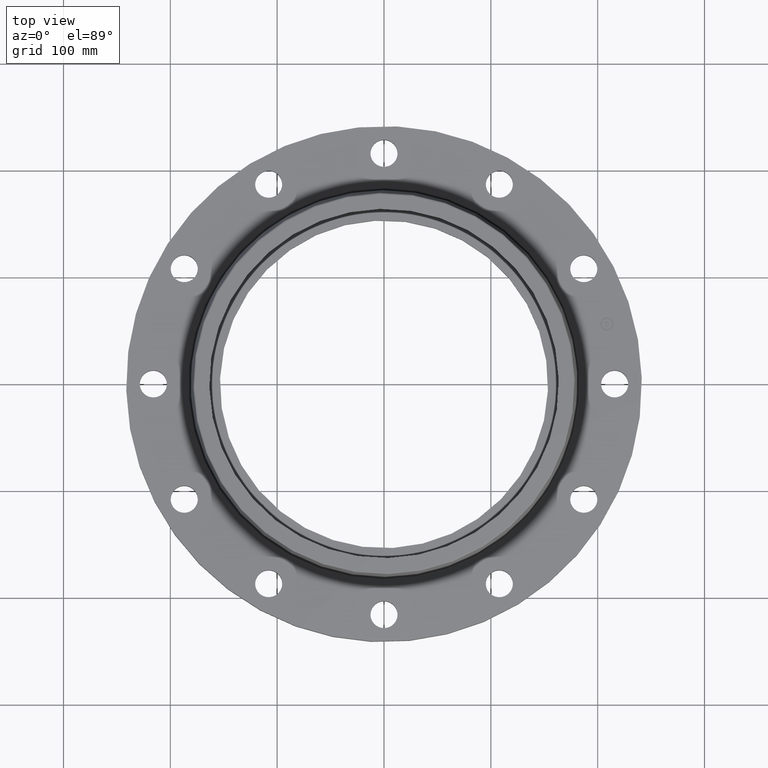
[diagram: clean part render]
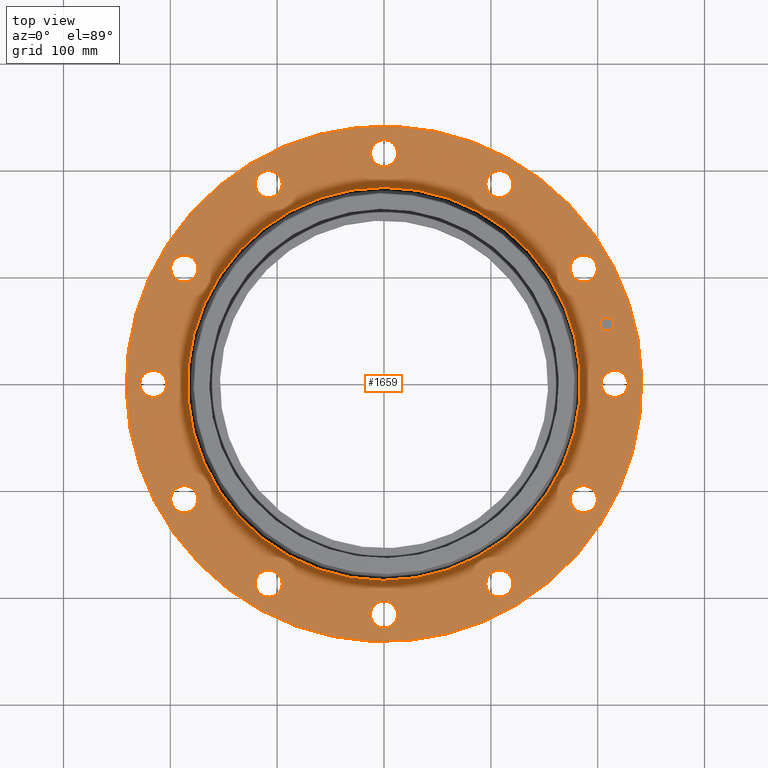
[diagram: same view with one face highlighted and labeled with its STEP entity id]
A machine part, top view. The second image highlights one B-rep face of the part: STEP entity #1659.
In plain terms, the highlighted planar face has unit normal (0, 0, -1).
Its self-contained STEP definition (entity closure, byte-faithful):
#685=AXIS2_PLACEMENT_3D('Circle Axis2P3D',#683,#684,$) ;
#704=AXIS2_PLACEMENT_3D('Circle Axis2P3D',#702,#703,$) ;
#735=AXIS2_PLACEMENT_3D('Circle Axis2P3D',#733,#734,$) ;
#747=AXIS2_PLACEMENT_3D('Circle Axis2P3D',#745,#746,$) ;
#779=AXIS2_PLACEMENT_3D('Circle Axis2P3D',#777,#778,$) ;
#791=AXIS2_PLACEMENT_3D('Circle Axis2P3D',#789,#790,$) ;
#823=AXIS2_PLACEMENT_3D('Circle Axis2P3D',#821,#822,$) ;
#835=AXIS2_PLACEMENT_3D('Circle Axis2P3D',#833,#834,$) ;
#867=AXIS2_PLACEMENT_3D('Circle Axis2P3D',#865,#866,$) ;
#879=AXIS2_PLACEMENT_3D('Circle Axis2P3D',#877,#878,$) ;
#911=AXIS2_PLACEMENT_3D('Circle Axis2P3D',#909,#910,$) ;
#923=AXIS2_PLACEMENT_3D('Circle Axis2P3D',#921,#922,$) ;
#955=AXIS2_PLACEMENT_3D('Circle Axis2P3D',#953,#954,$) ;
#967=AXIS2_PLACEMENT_3D('Circle Axis2P3D',#965,#966,$) ;
#999=AXIS2_PLACEMENT_3D('Circle Axis2P3D',#997,#998,$) ;
#1011=AXIS2_PLACEMENT_3D('Circle Axis2P3D',#1009,#1010,$) ;
#1043=AXIS2_PLACEMENT_3D('Circle Axis2P3D',#1041,#1042,$) ;
#1055=AXIS2_PLACEMENT_3D('Circle Axis2P3D',#1053,#1054,$) ;
#1087=AXIS2_PLACEMENT_3D('Circle Axis2P3D',#1085,#1086,$) ;
#1099=AXIS2_PLACEMENT_3D('Circle Axis2P3D',#1097,#1098,$) ;
#1131=AXIS2_PLACEMENT_3D('Circle Axis2P3D',#1129,#1130,$) ;
#1143=AXIS2_PLACEMENT_3D('Circle Axis2P3D',#1141,#1142,$) ;
#1175=AXIS2_PLACEMENT_3D('Circle Axis2P3D',#1173,#1174,$) ;
#1187=AXIS2_PLACEMENT_3D('Circle Axis2P3D',#1185,#1186,$) ;
#1219=AXIS2_PLACEMENT_3D('Circle Axis2P3D',#1217,#1218,$) ;
#1231=AXIS2_PLACEMENT_3D('Circle Axis2P3D',#1229,#1230,$) ;
#1249=AXIS2_PLACEMENT_3D('Circle Axis2P3D',#1247,#1248,$) ;
#1284=AXIS2_PLACEMENT_3D('Circle Axis2P3D',#1282,#1283,$) ;
#1583=AXIS2_PLACEMENT_3D('Plane Axis2P3D',#1580,#1581,#1582) ;
#1643=AXIS2_PLACEMENT_3D('Circle Axis2P3D',#1641,#1642,$) ;
#1652=AXIS2_PLACEMENT_3D('Circle Axis2P3D',#1650,#1651,$) ;
#680=CARTESIAN_POINT('Vertex',(-4.55454261676,-8.33703433799,1.19)) ;
#683=CARTESIAN_POINT('Axis2P3D Location',(0.,0.,1.19)) ;
#687=CARTESIAN_POINT('Vertex',(4.55454261676,8.33703433799,1.19)) ;
#702=CARTESIAN_POINT('Axis2P3D Location',(0.,0.,1.19)) ;
#723=CARTESIAN_POINT('Vertex',(8.73971276934,0.438791280947,1.19)) ;
#730=CARTESIAN_POINT('Vertex',(8.26028723073,-0.438791280947,1.19)) ;
#733=CARTESIAN_POINT('Axis2P3D Location',(8.50000000003,-5.98490048565E-016,1.19)) ;
#745=CARTESIAN_POINT('Axis2P3D Location',(8.50000000003,-5.98490048565E-016,1.19)) ;
#767=CARTESIAN_POINT('Vertex',(7.7882089205,-3.98985198841,1.19)) ;
#774=CARTESIAN_POINT('Vertex',(6.9342229439,-4.51014801162,1.19)) ;
#777=CARTESIAN_POINT('Axis2P3D Location',(7.3612159322,-4.25000000002,1.19)) ;
#789=CARTESIAN_POINT('Axis2P3D Location',(7.3612159322,-4.25000000002,1.19)) ;
#811=CARTESIAN_POINT('Vertex',(4.74986078093,-7.34941763955,1.19)) ;
#818=CARTESIAN_POINT('Vertex',(3.75013921911,-7.37301422484,1.19)) ;
#821=CARTESIAN_POINT('Axis2P3D Location',(4.25000000002,-7.3612159322,1.19)) ;
#833=CARTESIAN_POINT('Axis2P3D Location',(4.25000000002,-7.3612159322,1.19)) ;
#855=CARTESIAN_POINT('Vertex',(0.438791280947,-8.73971276934,1.19)) ;
#862=CARTESIAN_POINT('Vertex',(-0.438791280947,-8.26028723073,1.19)) ;
#865=CARTESIAN_POINT('Axis2P3D Location',(1.04094977928E-015,-8.50000000003,1.19)) ;
#877=CARTESIAN_POINT('Axis2P3D Location',(1.04094977928E-015,-8.50000000003,1.19)) ;
#899=CARTESIAN_POINT('Vertex',(-3.98985198841,-7.7882089205,1.19)) ;
#906=CARTESIAN_POINT('Vertex',(-4.51014801162,-6.9342229439,1.19)) ;
#909=CARTESIAN_POINT('Axis2P3D Location',(-4.25000000002,-7.3612159322,1.19)) ;
#921=CARTESIAN_POINT('Axis2P3D Location',(-4.25000000002,-7.3612159322,1.19)) ;
#943=CARTESIAN_POINT('Vertex',(-7.34941763955,-4.74986078093,1.19)) ;
#950=CARTESIAN_POINT('Vertex',(-7.37301422484,-3.75013921911,1.19)) ;
#953=CARTESIAN_POINT('Axis2P3D Location',(-7.3612159322,-4.25000000002,1.19)) ;
#965=CARTESIAN_POINT('Axis2P3D Location',(-7.3612159322,-4.25000000002,1.19)) ;
#987=CARTESIAN_POINT('Vertex',(-8.73971276934,-0.438791280947,1.19)) ;
#994=CARTESIAN_POINT('Vertex',(-8.26028723073,0.438791280947,1.19)) ;
#997=CARTESIAN_POINT('Axis2P3D Location',(-8.50000000003,-4.42459730714E-016,1.19)) ;
#1009=CARTESIAN_POINT('Axis2P3D Location',(-8.50000000003,-4.42459730714E-016,1.19)) ;
#1031=CARTESIAN_POINT('Vertex',(-7.7882089205,3.98985198841,1.19)) ;
#1038=CARTESIAN_POINT('Vertex',(-6.9342229439,4.51014801162,1.19)) ;
#1041=CARTESIAN_POINT('Axis2P3D Location',(-7.3612159322,4.25000000002,1.19)) ;
#1053=CARTESIAN_POINT('Axis2P3D Location',(-7.3612159322,4.25000000002,1.19)) ;
#1075=CARTESIAN_POINT('Vertex',(-4.74986078093,7.34941763955,1.19)) ;
#1082=CARTESIAN_POINT('Vertex',(-3.75013921911,7.37301422484,1.19)) ;
#1085=CARTESIAN_POINT('Axis2P3D Location',(-4.25000000002,7.3612159322,1.19)) ;
#1097=CARTESIAN_POINT('Axis2P3D Location',(-4.25000000002,7.3612159322,1.19)) ;
#1119=CARTESIAN_POINT('Vertex',(-0.438791280947,8.73971276934,1.19)) ;
#1126=CARTESIAN_POINT('Vertex',(0.438791280947,8.26028723073,1.19)) ;
#1129=CARTESIAN_POINT('Axis2P3D Location',(0.,8.50000000003,1.19)) ;
#1141=CARTESIAN_POINT('Axis2P3D Location',(0.,8.50000000003,1.19)) ;
#1163=CARTESIAN_POINT('Vertex',(3.98985198841,7.7882089205,1.19)) ;
#1170=CARTESIAN_POINT('Vertex',(4.51014801162,6.9342229439,1.19)) ;
#1173=CARTESIAN_POINT('Axis2P3D Location',(4.25000000002,7.3612159322,1.19)) ;
#1185=CARTESIAN_POINT('Axis2P3D Location',(4.25000000002,7.3612159322,1.19)) ;
#1207=CARTESIAN_POINT('Vertex',(7.34941763955,4.74986078093,1.19)) ;
#1214=CARTESIAN_POINT('Vertex',(7.37301422484,3.75013921911,1.19)) ;
#1217=CARTESIAN_POINT('Axis2P3D Location',(7.3612159322,4.25000000002,1.19)) ;
#1229=CARTESIAN_POINT('Axis2P3D Location',(7.3612159322,4.25000000002,1.19)) ;
#1247=CARTESIAN_POINT('Axis2P3D Location',(0.,0.,1.19)) ;
#1251=CARTESIAN_POINT('Vertex',(3.47120677014,6.35400137226,1.19)) ;
#1253=CARTESIAN_POINT('Vertex',(-3.47120677014,-6.35400137226,1.19)) ;
#1282=CARTESIAN_POINT('Axis2P3D Location',(0.,0.,1.19)) ;
#1580=CARTESIAN_POINT('Axis2P3D Location',(0.,9.50000000004,1.19)) ;
#1641=CARTESIAN_POINT('Axis2P3D Location',(8.21036952349,2.19996188338,1.19)) ;
#1645=CARTESIAN_POINT('Vertex',(8.14631180983,2.43902852539,1.19)) ;
#1647=CARTESIAN_POINT('Vertex',(8.27442723715,1.96089524137,1.19)) ;
#1650=CARTESIAN_POINT('Axis2P3D Location',(8.21036952349,2.19996188338,1.19)) ;
#684=DIRECTION('Axis2P3D Direction',(0.,0.,-0.0393700787402)) ;
#703=DIRECTION('Axis2P3D Direction',(0.,0.,-0.0393700787402)) ;
#734=DIRECTION('Axis2P3D Direction',(0.,-0.,-0.0393700787402)) ;
#746=DIRECTION('Axis2P3D Direction',(0.,-0.,-0.0393700787402)) ;
#778=DIRECTION('Axis2P3D Direction',(-0.,0.,-0.0393700787402)) ;
#790=DIRECTION('Axis2P3D Direction',(-0.,0.,-0.0393700787402)) ;
#822=DIRECTION('Axis2P3D Direction',(-0.,0.,-0.0393700787402)) ;
#834=DIRECTION('Axis2P3D Direction',(-0.,0.,-0.0393700787402)) ;
#866=DIRECTION('Axis2P3D Direction',(-0.,0.,-0.0393700787402)) ;
#878=DIRECTION('Axis2P3D Direction',(-0.,0.,-0.0393700787402)) ;
#910=DIRECTION('Axis2P3D Direction',(0.,0.,-0.0393700787402)) ;
#922=DIRECTION('Axis2P3D Direction',(0.,0.,-0.0393700787402)) ;
#954=DIRECTION('Axis2P3D Direction',(0.,0.,-0.0393700787402)) ;
#966=DIRECTION('Axis2P3D Direction',(0.,0.,-0.0393700787402)) ;
#998=DIRECTION('Axis2P3D Direction',(0.,0.,-0.0393700787402)) ;
#1010=DIRECTION('Axis2P3D Direction',(0.,0.,-0.0393700787402)) ;
#1042=DIRECTION('Axis2P3D Direction',(0.,0.,-0.0393700787402)) ;
#1054=DIRECTION('Axis2P3D Direction',(0.,0.,-0.0393700787402)) ;
#1086=DIRECTION('Axis2P3D Direction',(0.,0.,-0.0393700787402)) ;
#1098=DIRECTION('Axis2P3D Direction',(0.,0.,-0.0393700787402)) ;
#1130=DIRECTION('Axis2P3D Direction',(0.,-0.,-0.0393700787402)) ;
#1142=DIRECTION('Axis2P3D Direction',(0.,-0.,-0.0393700787402)) ;
#1174=DIRECTION('Axis2P3D Direction',(0.,-0.,-0.0393700787402)) ;
#1186=DIRECTION('Axis2P3D Direction',(0.,-0.,-0.0393700787402)) ;
#1218=DIRECTION('Axis2P3D Direction',(0.,-0.,-0.0393700787402)) ;
#1230=DIRECTION('Axis2P3D Direction',(0.,-0.,-0.0393700787402)) ;
#1248=DIRECTION('Axis2P3D Direction',(0.,0.,-0.0393700787402)) ;
#1283=DIRECTION('Axis2P3D Direction',(0.,0.,-0.0393700787402)) ;
#1581=DIRECTION('Axis2P3D Direction',(0.,0.,-0.0393700787402)) ;
#1582=DIRECTION('Axis2P3D XDirection',(0.0393700787402,0.,0.)) ;
#1642=DIRECTION('Axis2P3D Direction',(0.,0.,-0.0393700787402)) ;
#1651=DIRECTION('Axis2P3D Direction',(0.,0.,-0.0393700787402)) ;
#1586=ORIENTED_EDGE('',*,*,#706,.F.) ;
#1587=ORIENTED_EDGE('',*,*,#689,.F.) ;
#1590=ORIENTED_EDGE('',*,*,#1133,.T.) ;
#1591=ORIENTED_EDGE('',*,*,#1145,.T.) ;
#1594=ORIENTED_EDGE('',*,*,#1286,.T.) ;
#1595=ORIENTED_EDGE('',*,*,#1255,.T.) ;
#1598=ORIENTED_EDGE('',*,*,#1189,.T.) ;
#1599=ORIENTED_EDGE('',*,*,#1177,.T.) ;
#1602=ORIENTED_EDGE('',*,*,#1233,.T.) ;
#1603=ORIENTED_EDGE('',*,*,#1221,.T.) ;
#1606=ORIENTED_EDGE('',*,*,#749,.T.) ;
#1607=ORIENTED_EDGE('',*,*,#737,.T.) ;
#1610=ORIENTED_EDGE('',*,*,#793,.T.) ;
#1611=ORIENTED_EDGE('',*,*,#781,.T.) ;
#1614=ORIENTED_EDGE('',*,*,#837,.T.) ;
#1615=ORIENTED_EDGE('',*,*,#825,.T.) ;
#1618=ORIENTED_EDGE('',*,*,#881,.T.) ;
#1619=ORIENTED_EDGE('',*,*,#869,.T.) ;
#1622=ORIENTED_EDGE('',*,*,#925,.T.) ;
#1623=ORIENTED_EDGE('',*,*,#913,.T.) ;
#1626=ORIENTED_EDGE('',*,*,#969,.T.) ;
#1627=ORIENTED_EDGE('',*,*,#957,.T.) ;
#1630=ORIENTED_EDGE('',*,*,#1013,.T.) ;
#1631=ORIENTED_EDGE('',*,*,#1001,.T.) ;
#1634=ORIENTED_EDGE('',*,*,#1057,.T.) ;
#1635=ORIENTED_EDGE('',*,*,#1045,.T.) ;
#1638=ORIENTED_EDGE('',*,*,#1101,.T.) ;
#1639=ORIENTED_EDGE('',*,*,#1089,.T.) ;
#1656=ORIENTED_EDGE('',*,*,#1649,.T.) ;
#1657=ORIENTED_EDGE('',*,*,#1654,.T.) ;
#1592=FACE_BOUND('',#1589,.T.) ;
#1596=FACE_BOUND('',#1593,.T.) ;
#1600=FACE_BOUND('',#1597,.T.) ;
#1604=FACE_BOUND('',#1601,.T.) ;
#1608=FACE_BOUND('',#1605,.T.) ;
#1612=FACE_BOUND('',#1609,.T.) ;
#1616=FACE_BOUND('',#1613,.T.) ;
#1620=FACE_BOUND('',#1617,.T.) ;
#1624=FACE_BOUND('',#1621,.T.) ;
#1628=FACE_BOUND('',#1625,.T.) ;
#1632=FACE_BOUND('',#1629,.T.) ;
#1636=FACE_BOUND('',#1633,.T.) ;
#1640=FACE_BOUND('',#1637,.T.) ;
#1658=FACE_BOUND('',#1655,.T.) ;
#1659=ADVANCED_FACE('PartBody',(#1588,#1592,#1596,#1600,#1604,#1608,#1612,#1616,#1620,#1624,#1628,#1632,#1636,#1640,#1658),#1584,.F.) ;
#686=CIRCLE('generated circle',#685,9.50000000004) ;
#705=CIRCLE('generated circle',#704,9.50000000004) ;
#736=CIRCLE('generated circle',#735,0.500000000002) ;
#748=CIRCLE('generated circle',#747,0.500000000002) ;
#780=CIRCLE('generated circle',#779,0.500000000002) ;
#792=CIRCLE('generated circle',#791,0.500000000002) ;
#824=CIRCLE('generated circle',#823,0.500000000002) ;
#836=CIRCLE('generated circle',#835,0.500000000002) ;
#868=CIRCLE('generated circle',#867,0.500000000002) ;
#880=CIRCLE('generated circle',#879,0.500000000002) ;
#912=CIRCLE('generated circle',#911,0.500000000002) ;
#924=CIRCLE('generated circle',#923,0.500000000002) ;
#956=CIRCLE('generated circle',#955,0.500000000002) ;
#968=CIRCLE('generated circle',#967,0.500000000002) ;
#1000=CIRCLE('generated circle',#999,0.500000000002) ;
#1012=CIRCLE('generated circle',#1011,0.500000000002) ;
#1044=CIRCLE('generated circle',#1043,0.500000000002) ;
#1056=CIRCLE('generated circle',#1055,0.500000000002) ;
#1088=CIRCLE('generated circle',#1087,0.500000000002) ;
#1100=CIRCLE('generated circle',#1099,0.500000000002) ;
#1132=CIRCLE('generated circle',#1131,0.500000000002) ;
#1144=CIRCLE('generated circle',#1143,0.500000000002) ;
#1176=CIRCLE('generated circle',#1175,0.500000000002) ;
#1188=CIRCLE('generated circle',#1187,0.500000000002) ;
#1220=CIRCLE('generated circle',#1219,0.500000000002) ;
#1232=CIRCLE('generated circle',#1231,0.500000000002) ;
#1250=CIRCLE('generated circle',#1249,7.2403459779) ;
#1285=CIRCLE('generated circle',#1284,7.2403459779) ;
#1644=CIRCLE('generated circle',#1643,0.247500000001) ;
#1653=CIRCLE('generated circle',#1652,0.247500000001) ;
#689=EDGE_CURVE('',#681,#688,#686,.T.) ;
#706=EDGE_CURVE('',#688,#681,#705,.T.) ;
#737=EDGE_CURVE('',#724,#731,#736,.T.) ;
#749=EDGE_CURVE('',#731,#724,#748,.T.) ;
#781=EDGE_CURVE('',#768,#775,#780,.T.) ;
#793=EDGE_CURVE('',#775,#768,#792,.T.) ;
#825=EDGE_CURVE('',#812,#819,#824,.T.) ;
#837=EDGE_CURVE('',#819,#812,#836,.T.) ;
#869=EDGE_CURVE('',#856,#863,#868,.T.) ;
#881=EDGE_CURVE('',#863,#856,#880,.T.) ;
#913=EDGE_CURVE('',#900,#907,#912,.T.) ;
#925=EDGE_CURVE('',#907,#900,#924,.T.) ;
#957=EDGE_CURVE('',#944,#951,#956,.T.) ;
#969=EDGE_CURVE('',#951,#944,#968,.T.) ;
#1001=EDGE_CURVE('',#988,#995,#1000,.T.) ;
#1013=EDGE_CURVE('',#995,#988,#1012,.T.) ;
#1045=EDGE_CURVE('',#1032,#1039,#1044,.T.) ;
#1057=EDGE_CURVE('',#1039,#1032,#1056,.T.) ;
#1089=EDGE_CURVE('',#1076,#1083,#1088,.T.) ;
#1101=EDGE_CURVE('',#1083,#1076,#1100,.T.) ;
#1133=EDGE_CURVE('',#1120,#1127,#1132,.T.) ;
#1145=EDGE_CURVE('',#1127,#1120,#1144,.T.) ;
#1177=EDGE_CURVE('',#1164,#1171,#1176,.T.) ;
#1189=EDGE_CURVE('',#1171,#1164,#1188,.T.) ;
#1221=EDGE_CURVE('',#1208,#1215,#1220,.T.) ;
#1233=EDGE_CURVE('',#1215,#1208,#1232,.T.) ;
#1255=EDGE_CURVE('',#1252,#1254,#1250,.T.) ;
#1286=EDGE_CURVE('',#1254,#1252,#1285,.T.) ;
#1649=EDGE_CURVE('',#1646,#1648,#1644,.T.) ;
#1654=EDGE_CURVE('',#1648,#1646,#1653,.T.) ;
#1585=EDGE_LOOP('',(#1586,#1587)) ;
#1589=EDGE_LOOP('',(#1590,#1591)) ;
#1593=EDGE_LOOP('',(#1594,#1595)) ;
#1597=EDGE_LOOP('',(#1598,#1599)) ;
#1601=EDGE_LOOP('',(#1602,#1603)) ;
#1605=EDGE_LOOP('',(#1606,#1607)) ;
#1609=EDGE_LOOP('',(#1610,#1611)) ;
#1613=EDGE_LOOP('',(#1614,#1615)) ;
#1617=EDGE_LOOP('',(#1618,#1619)) ;
#1621=EDGE_LOOP('',(#1622,#1623)) ;
#1625=EDGE_LOOP('',(#1626,#1627)) ;
#1629=EDGE_LOOP('',(#1630,#1631)) ;
#1633=EDGE_LOOP('',(#1634,#1635)) ;
#1637=EDGE_LOOP('',(#1638,#1639)) ;
#1655=EDGE_LOOP('',(#1656,#1657)) ;
#1588=FACE_OUTER_BOUND('',#1585,.T.) ;
#1584=PLANE('',#1583) ;
#681=VERTEX_POINT('',#680) ;
#688=VERTEX_POINT('',#687) ;
#724=VERTEX_POINT('',#723) ;
#731=VERTEX_POINT('',#730) ;
#768=VERTEX_POINT('',#767) ;
#775=VERTEX_POINT('',#774) ;
#812=VERTEX_POINT('',#811) ;
#819=VERTEX_POINT('',#818) ;
#856=VERTEX_POINT('',#855) ;
#863=VERTEX_POINT('',#862) ;
#900=VERTEX_POINT('',#899) ;
#907=VERTEX_POINT('',#906) ;
#944=VERTEX_POINT('',#943) ;
#951=VERTEX_POINT('',#950) ;
#988=VERTEX_POINT('',#987) ;
#995=VERTEX_POINT('',#994) ;
#1032=VERTEX_POINT('',#1031) ;
#1039=VERTEX_POINT('',#1038) ;
#1076=VERTEX_POINT('',#1075) ;
#1083=VERTEX_POINT('',#1082) ;
#1120=VERTEX_POINT('',#1119) ;
#1127=VERTEX_POINT('',#1126) ;
#1164=VERTEX_POINT('',#1163) ;
#1171=VERTEX_POINT('',#1170) ;
#1208=VERTEX_POINT('',#1207) ;
#1215=VERTEX_POINT('',#1214) ;
#1252=VERTEX_POINT('',#1251) ;
#1254=VERTEX_POINT('',#1253) ;
#1646=VERTEX_POINT('',#1645) ;
#1648=VERTEX_POINT('',#1647) ;